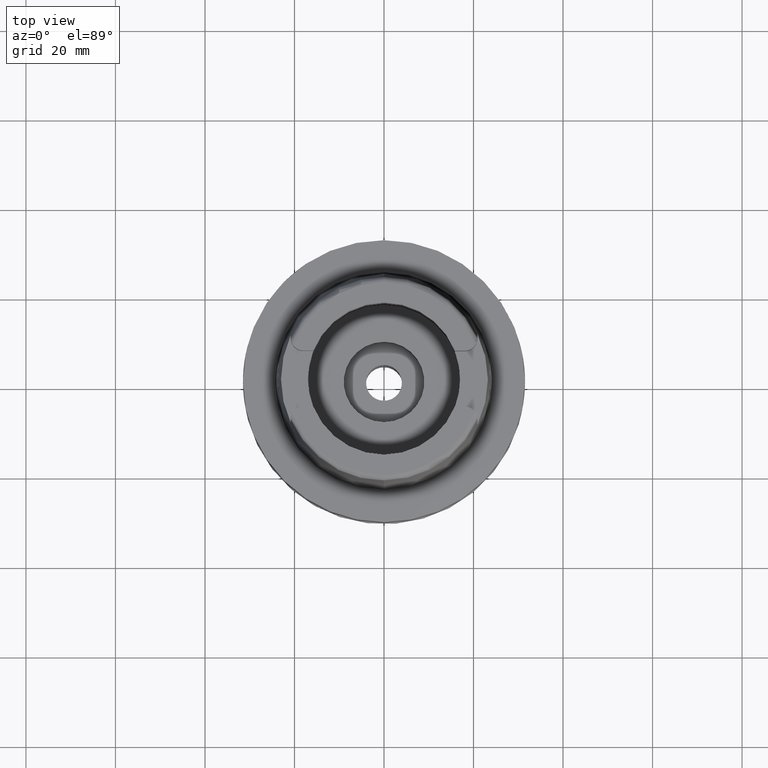
[diagram: clean part render]
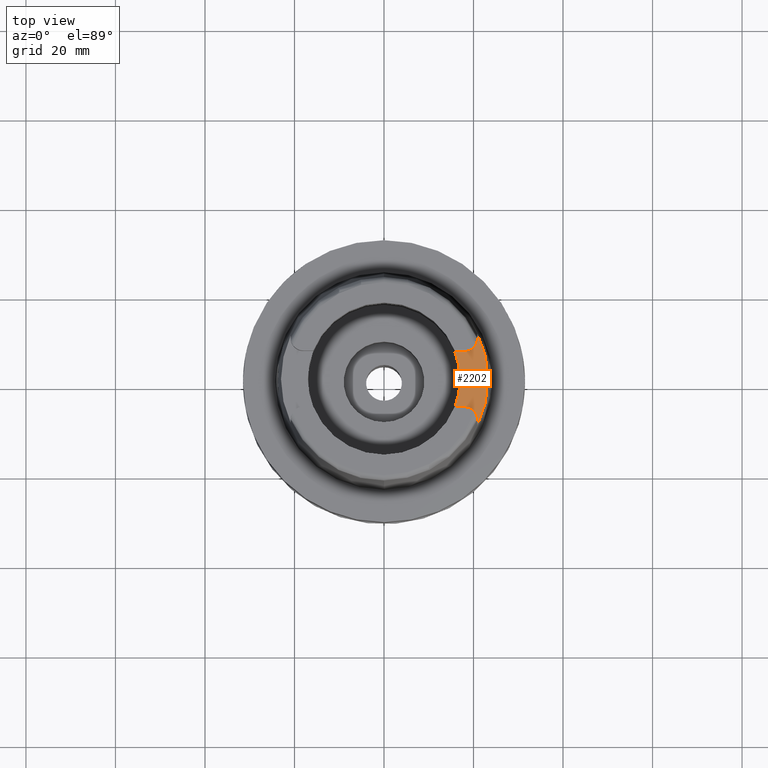
[diagram: same view with one face highlighted and labeled with its STEP entity id]
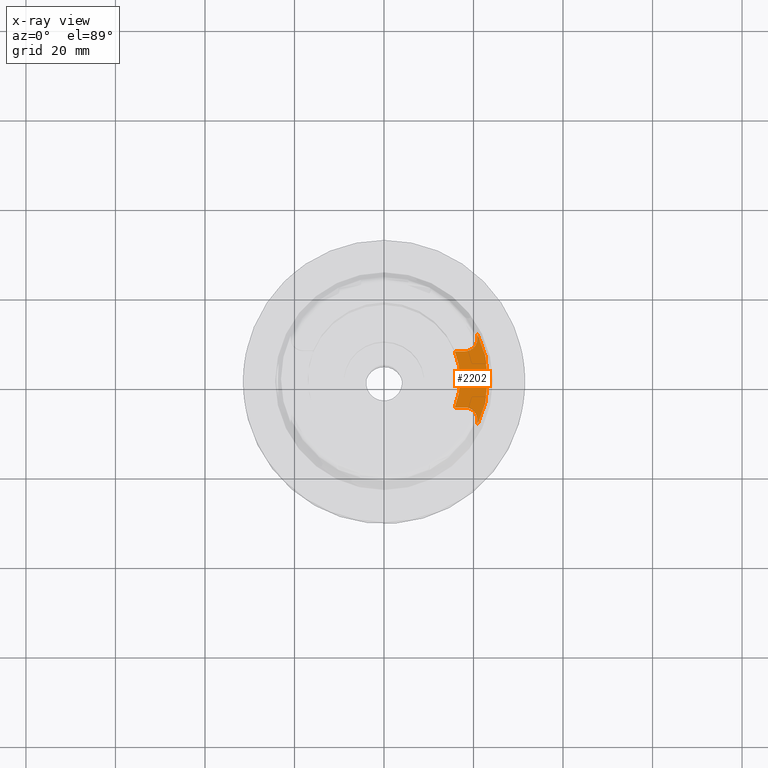
[diagram: x-ray of the same camera — body ghosted, the highlighted face saturated]
A machine part, top view. The second image highlights one B-rep face of the part: STEP entity #2202.
The next image is the same camera in x-ray: the body ghosted, the highlighted face saturated — about 0% of this face is hidden behind the body in this view.
In plain terms, the highlighted planar face has unit normal (0, 0, 1).
Its self-contained STEP definition (entity closure, byte-faithful):
#26 = VERTEX_POINT ( 'NONE', #1747 ) ;
#144 = CIRCLE ( 'NONE', #5292, 23.21499834174998966 ) ;
#229 = CIRCLE ( 'NONE', #4054, 2.800000000000000266 ) ;
#276 = CARTESIAN_POINT ( 'NONE',  ( 15.80149043602999903, 6.270000000000000462, 22.00000000000000000 ) ) ;
#287 = DIRECTION ( 'NONE',  ( 1.000000000000000000, 0.0000000000000000000, 0.0000000000000000000 ) ) ;
#312 = LINE ( 'NONE', #3231, #1575 ) ;
#316 = VERTEX_POINT ( 'NONE', #2398 ) ;
#321 = CIRCLE ( 'NONE', #1734, 2.800000000000000266 ) ;
#501 = VECTOR ( 'NONE', #1645, 999.9999999999998863 ) ;
#710 = ORIENTED_EDGE ( 'NONE', *, *, #2776, .F. ) ;
#772 = CARTESIAN_POINT ( 'NONE',  ( 15.80149043602999903, -6.270000000000000462, 22.00000000000000000 ) ) ;
#803 = EDGE_CURVE ( 'NONE', #26, #4225, #4136, .T. ) ;
#1097 = CARTESIAN_POINT ( 'NONE',  ( 0.0000000000000000000, 0.0000000000000000000, 22.00000000000000000 ) ) ;
#1193 = EDGE_CURVE ( 'NONE', #4213, #3386, #2714, .T. ) ;
#1456 = ORIENTED_EDGE ( 'NONE', *, *, #1193, .F. ) ;
#1516 = DIRECTION ( 'NONE',  ( 0.0000000000000000000, 0.0000000000000000000, 1.000000000000000000 ) ) ;
#1554 = AXIS2_PLACEMENT_3D ( 'NONE', #4955, #5313, #287 ) ;
#1573 = ORIENTED_EDGE ( 'NONE', *, *, #2478, .F. ) ;
#1575 = VECTOR ( 'NONE', #2008, 1000.000000000000000 ) ;
#1645 = DIRECTION ( 'NONE',  ( -4.018343739316107275E-06, 0.9999999999919265692, -7.121100977230194019E-14 ) ) ;
#1668 = VERTEX_POINT ( 'NONE', #2454 ) ;
#1734 = AXIS2_PLACEMENT_3D ( 'NONE', #3307, #5104, #4662 ) ;
#1747 = CARTESIAN_POINT ( 'NONE',  ( 20.87000000000000099, -10.16755860605000095, 22.00000000000000000 ) ) ;
#1798 = ORIENTED_EDGE ( 'NONE', *, *, #2896, .F. ) ;
#1886 = CARTESIAN_POINT ( 'NONE',  ( 20.87000000000000099, -9.801705737115721462, 22.00000000000000000 ) ) ;
#1933 = VERTEX_POINT ( 'NONE', #3568 ) ;
#2008 = DIRECTION ( 'NONE',  ( -1.000000000000000000, -8.496094534321000305E-14, 0.0000000000000000000 ) ) ;
#2083 = ORIENTED_EDGE ( 'NONE', *, *, #3852, .F. ) ;
#2202 = ADVANCED_FACE ( 'NONE', ( #4069 ), #3735, .T. ) ;
#2243 = DIRECTION ( 'NONE',  ( 0.0000000000000000000, 0.0000000000000000000, 1.000000000000000000 ) ) ;
#2358 = CARTESIAN_POINT ( 'NONE',  ( 20.87000000000000099, -9.070000000000000284, 22.00000000000000000 ) ) ;
#2398 = CARTESIAN_POINT ( 'NONE',  ( 20.87000000000000099, 10.16755860605000095, 22.00000000000000000 ) ) ;
#2414 = LINE ( 'NONE', #276, #5392 ) ;
#2451 = AXIS2_PLACEMENT_3D ( 'NONE', #1097, #1516, #4051 ) ;
#2454 = CARTESIAN_POINT ( 'NONE',  ( 18.07000000000000028, 6.270000000000000462, 22.00000000000000000 ) ) ;
#2478 = EDGE_CURVE ( 'NONE', #4225, #5338, #229, .T. ) ;
#2714 = CIRCLE ( 'NONE', #2451, 17.00000000000000000 ) ;
#2776 = EDGE_CURVE ( 'NONE', #1668, #1933, #321, .T. ) ;
#2896 = EDGE_CURVE ( 'NONE', #316, #26, #144, .T. ) ;
#3194 = CARTESIAN_POINT ( 'NONE',  ( 20.87000000000000099, -10.16755860605000095, 22.00000000000000000 ) ) ;
#3231 = CARTESIAN_POINT ( 'NONE',  ( 18.07000000000000028, -6.270000000000000462, 22.00000000000000000 ) ) ;
#3307 = CARTESIAN_POINT ( 'NONE',  ( 18.07000000000000028, 9.070000000000000284, 22.00000000000000000 ) ) ;
#3363 = DIRECTION ( 'NONE',  ( 0.0000000000000000000, 0.0000000000000000000, -1.000000000000000000 ) ) ;
#3386 = VERTEX_POINT ( 'NONE', #3803 ) ;
#3474 = DIRECTION ( 'NONE',  ( 1.000000000000000000, 0.0000000000000000000, 0.0000000000000000000 ) ) ;
#3568 = CARTESIAN_POINT ( 'NONE',  ( 20.87000000000000099, 9.070000000000000284, 22.00000000000000000 ) ) ;
#3668 = DIRECTION ( 'NONE',  ( 1.000000000000000000, -8.222026968698000936E-14, 0.0000000000000000000 ) ) ;
#3735 = PLANE ( 'NONE',  #1554 ) ;
#3754 = CARTESIAN_POINT ( 'NONE',  ( 0.0000000000000000000, 0.0000000000000000000, 22.00000000000000000 ) ) ;
#3803 = CARTESIAN_POINT ( 'NONE',  ( 15.80149043602999903, 6.270000000000000462, 22.00000000000000000 ) ) ;
#3852 = EDGE_CURVE ( 'NONE', #1933, #316, #4164, .T. ) ;
#4034 = CARTESIAN_POINT ( 'NONE',  ( 20.87000000000000099, -9.070000000000000284, 22.00000000000000000 ) ) ;
#4051 = DIRECTION ( 'NONE',  ( 0.9294994374136111848, -0.3688235294118045182, 0.0000000000000000000 ) ) ;
#4054 = AXIS2_PLACEMENT_3D ( 'NONE', #4808, #2243, #3474 ) ;
#4069 = FACE_OUTER_BOUND ( 'NONE', #4702, .T. ) ;
#4125 = ORIENTED_EDGE ( 'NONE', *, *, #803, .F. ) ;
#4136 = B_SPLINE_CURVE_WITH_KNOTS ( 'NONE', 3,
 ( #3194, #1886, #4420, #2358 ),
 .UNSPECIFIED., .F., .F.,
 ( 4, 4 ),
 ( 0.0000000000000000000, 1.000000000000000000 ),
 .UNSPECIFIED. ) ;
#4164 = LINE ( 'NONE', #5450, #501 ) ;
#4213 = VERTEX_POINT ( 'NONE', #772 ) ;
#4225 = VERTEX_POINT ( 'NONE', #4034 ) ;
#4420 = CARTESIAN_POINT ( 'NONE',  ( 20.87000000000000099, -9.435852868557860873, 22.00000000000000000 ) ) ;
#4453 = ORIENTED_EDGE ( 'NONE', *, *, #4663, .F. ) ;
#4574 = ORIENTED_EDGE ( 'NONE', *, *, #5136, .F. ) ;
#4662 = DIRECTION ( 'NONE',  ( 0.0000000000000000000, -1.000000000000000000, 0.0000000000000000000 ) ) ;
#4663 = EDGE_CURVE ( 'NONE', #5338, #4213, #312, .T. ) ;
#4695 = DIRECTION ( 'NONE',  ( 0.8989877876694615244, 0.4379736951246811505, 0.0000000000000000000 ) ) ;
#4702 = EDGE_LOOP ( 'NONE', ( #4453, #1573, #4125, #1798, #2083, #710, #4574, #1456 ) ) ;
#4783 = CARTESIAN_POINT ( 'NONE',  ( 18.07000000000000028, -6.270000000000000462, 22.00000000000000000 ) ) ;
#4808 = CARTESIAN_POINT ( 'NONE',  ( 18.07000000000000028, -9.070000000000000284, 22.00000000000000000 ) ) ;
#4955 = CARTESIAN_POINT ( 'NONE',  ( 0.0000000000000000000, 0.0000000000000000000, 22.00000000000000000 ) ) ;
#5104 = DIRECTION ( 'NONE',  ( 0.0000000000000000000, 0.0000000000000000000, 1.000000000000000000 ) ) ;
#5136 = EDGE_CURVE ( 'NONE', #3386, #1668, #2414, .T. ) ;
#5292 = AXIS2_PLACEMENT_3D ( 'NONE', #3754, #3363, #4695 ) ;
#5313 = DIRECTION ( 'NONE',  ( 0.0000000000000000000, 0.0000000000000000000, 1.000000000000000000 ) ) ;
#5338 = VERTEX_POINT ( 'NONE', #4783 ) ;
#5392 = VECTOR ( 'NONE', #3668, 1000.000000000000000 ) ;
#5450 = CARTESIAN_POINT ( 'NONE',  ( 20.87000000000000099, 9.070000000000000284, 22.00000000000000000 ) ) ;